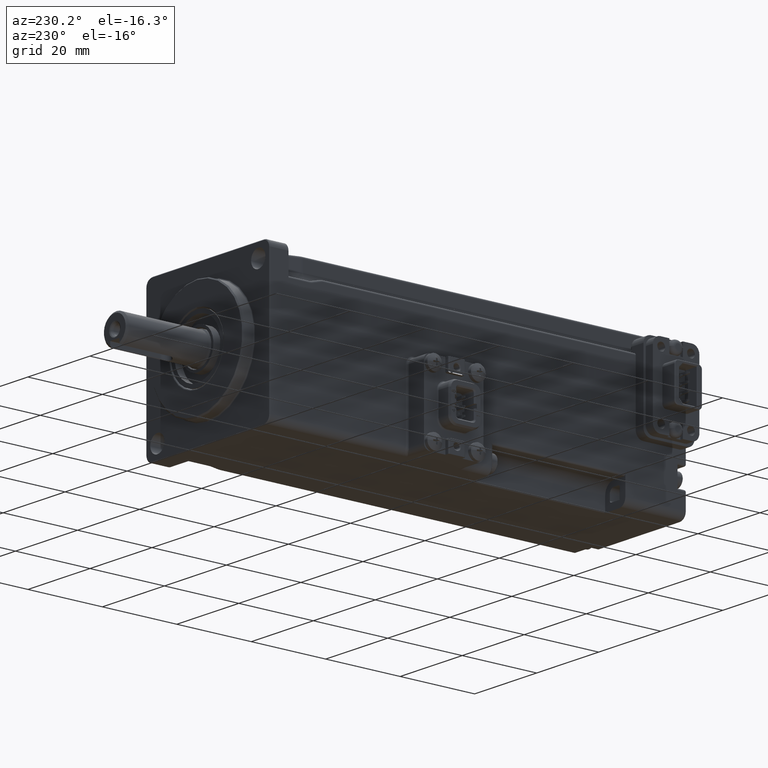
[diagram: clean part render]
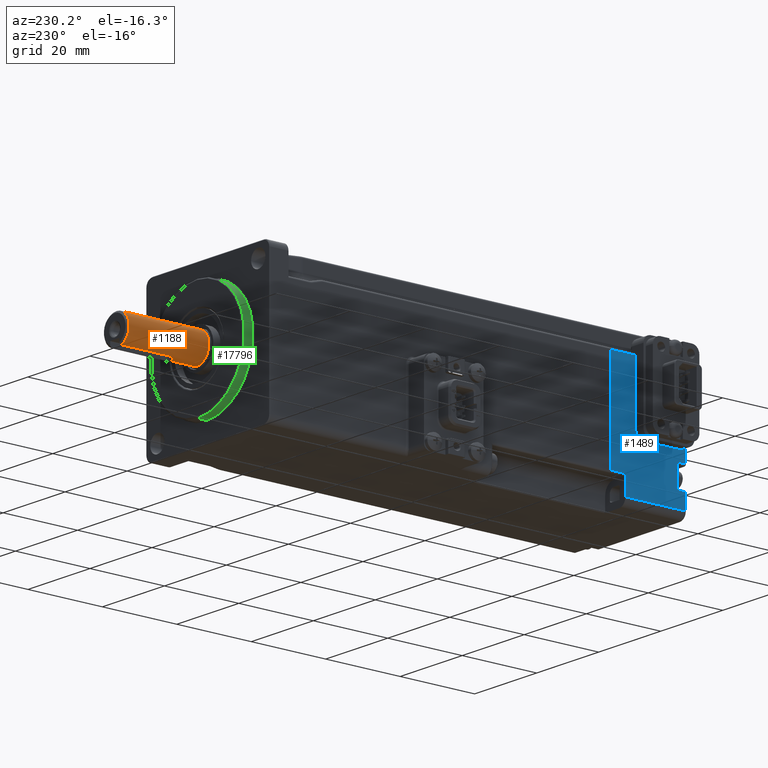
[diagram: same view with three faces highlighted in distinct colors, each labeled with its STEP entity id]
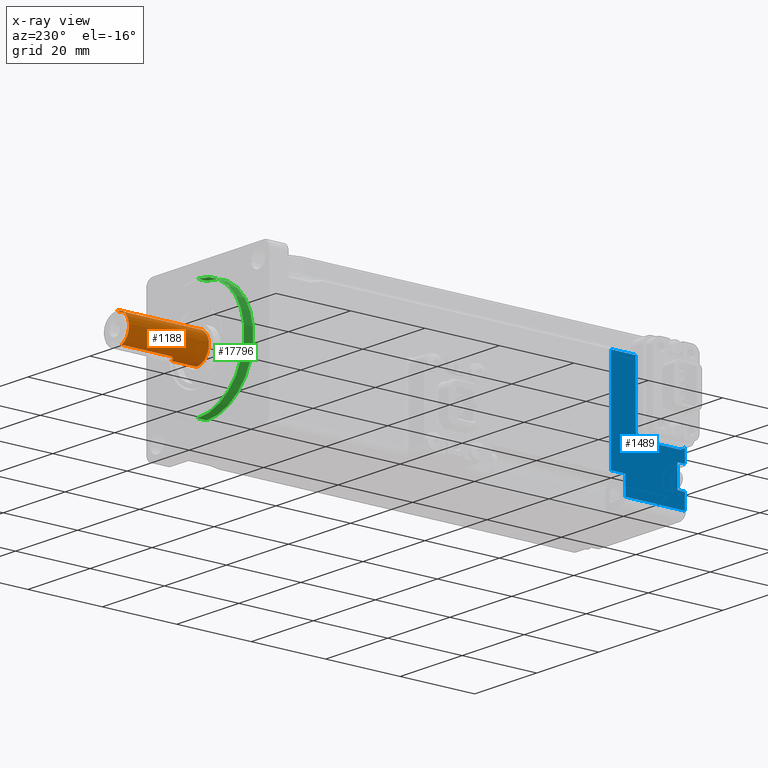
[diagram: x-ray of the same camera — body ghosted, the three highlighted faces saturated]
A machine part, auxiliary view with three faces highlighted in distinct colors.
The next image is the same camera in x-ray (body ghosted, the three faces saturated) — at least one of them is partly hidden behind the body in this view.
Their STEP definitions:

[orange] entity #1188 — the highlighted cylindrical surface (edge-blend (fillet) strip) has radius 4 mm, axis along (0, 1, -0).
#440 = DIRECTION ( 'NONE',  ( 4.613964343715449020E-16, 1.000000000000000000, -1.668049390122796326E-15 ) ) ;
#639 = EDGE_CURVE ( 'NONE', #9700, #16134, #3141, .T. ) ;
#959 = DIRECTION ( 'NONE',  ( -4.613964343715449020E-16, -1.000000000000000000, 1.668049390122796326E-15 ) ) ;
#1097 = ORIENTED_EDGE ( 'NONE', *, *, #639, .T. ) ;
#1188 = ADVANCED_FACE ( 'NONE', ( #8920 ), #24474, .T. ) ;
#1297 = CARTESIAN_POINT ( 'NONE',  ( -1.586832844033362555, 66.08782995957716366, -3.671852177346456525 ) ) ;
#2104 = VECTOR ( 'NONE', #440, 1000.000000000000000 ) ;
#2597 = DIRECTION ( 'NONE',  ( 7.660538869913578551E-15, 0.000000000000000000, 1.000000000000000000 ) ) ;
#3141 = B_SPLINE_CURVE_WITH_KNOTS ( 'NONE', 3,
 ( #10251, #20370, #16602, #1297, #16016, #15766, #23408, #17898, #3182, #13752, #18487, #6231, #21416, #8828 ),
 .UNSPECIFIED., .F., .F.,
 ( 4, 2, 2, 2, 2, 2, 4 ),
 ( 0.000000000000000000, 0.06254959109120407368, 0.1250991821824081474, 0.2501983643648162947, 0.3752975465472244143, 0.4378471376384270308, 0.5003967287296295918 ),
 .UNSPECIFIED. ) ;
#3158 = DIRECTION ( 'NONE',  ( -7.660538869913578551E-15, 0.000000000000000000, -1.000000000000000000 ) ) ;
#3182 = CARTESIAN_POINT ( 'NONE',  ( -0.8298643287301773475, 65.12403026724594213, -3.918116802540133392 ) ) ;
#4179 = CARTESIAN_POINT ( 'NONE',  ( 4.261000048802709602E-14, 80.00000000000000000, 3.999999999999956035 ) ) ;
#4997 = AXIS2_PLACEMENT_3D ( 'NONE', #14363, #23774, #14239 ) ;
#5760 = EDGE_CURVE ( 'NONE', #14280, #19869, #12190, .T. ) ;
#6231 = CARTESIAN_POINT ( 'NONE',  ( -0.2160948840704139118, 64.93314338348770320, -3.995573254002966923 ) ) ;
#6359 = DIRECTION ( 'NONE',  ( -4.613964343715449020E-16, -1.000000000000000000, 1.668049390122796326E-15 ) ) ;
#7172 = AXIS2_PLACEMENT_3D ( 'NONE', #9289, #22838, #3158 ) ;
#7923 = ORIENTED_EDGE ( 'NONE', *, *, #5760, .T. ) ;
#8251 = CARTESIAN_POINT ( 'NONE',  ( -1.640167532133030459, 66.49999999999998579, -3.648266775680856888 ) ) ;
#8585 = CARTESIAN_POINT ( 'NONE',  ( 3.743252093120352734E-14, 58.05734907715176973, 3.999999999999991562 ) ) ;
#8622 = ORIENTED_EDGE ( 'NONE', *, *, #18513, .T. ) ;
#8828 = CARTESIAN_POINT ( 'NONE',  ( 1.120374206118987129E-09, 64.92284821147453044, -3.999999999396812278 ) ) ;
#8920 = FACE_OUTER_BOUND ( 'NONE', #21689, .T. ) ;
#9289 = CARTESIAN_POINT ( 'NONE',  ( 1.245770372803171452E-14, 80.00000000000000000, -4.503733353331550218E-14 ) ) ;
#9700 = VERTEX_POINT ( 'NONE', #8251 ) ;
#10123 = LINE ( 'NONE', #10257, #24551 ) ;
#10251 = CARTESIAN_POINT ( 'NONE',  ( -1.640167532133030459, 66.49999999999998579, -3.648266775680856888 ) ) ;
#10257 = CARTESIAN_POINT ( 'NONE',  ( -1.640167532133024464, 80.00000000000000000, -3.648266775680879537 ) ) ;
#11700 = LINE ( 'NONE', #4179, #21087 ) ;
#11827 = AXIS2_PLACEMENT_3D ( 'NONE', #23794, #959, #2597 ) ;
#12190 = CIRCLE ( 'NONE', #4997, 4.000000000000000888 ) ;
#13731 = LINE ( 'NONE', #19028, #2104 ) ;
#13752 = CARTESIAN_POINT ( 'NONE',  ( -0.5324670303645504532, 65.00469672938253041, -3.965672374539582545 ) ) ;
#14062 = CARTESIAN_POINT ( 'NONE',  ( 1.120374206118987129E-09, 64.92284821147453044, -3.999999999396812278 ) ) ;
#14239 = DIRECTION ( 'NONE',  ( 5.884182030513328875E-15, 1.734723475976806700E-15, 1.000000000000000000 ) ) ;
#14280 = VERTEX_POINT ( 'NONE', #19175 ) ;
#14363 = CARTESIAN_POINT ( 'NONE',  ( 2.333442831570047172E-15, 58.05734907715176263, -8.435908043781079547E-15 ) ) ;
#14406 = EDGE_CURVE ( 'NONE', #20187, #9700, #10123, .T. ) ;
#15503 = CARTESIAN_POINT ( 'NONE',  ( 4.286916099050023172E-14, 79.49999999999997158, 3.999999999999954259 ) ) ;
#15766 = CARTESIAN_POINT ( 'NONE',  ( -1.431204434105839862, 65.70286656942806758, -3.736245161417673266 ) ) ;
#16016 = CARTESIAN_POINT ( 'NONE',  ( -1.554414280712038021, 65.98640223463317511, -3.685887241021339022 ) ) ;
#16134 = VERTEX_POINT ( 'NONE', #14062 ) ;
#16558 = ORIENTED_EDGE ( 'NONE', *, *, #18176, .T. ) ;
#16602 = CARTESIAN_POINT ( 'NONE',  ( -1.629264850746786397, 66.29099116134379699, -3.653222267164699222 ) ) ;
#17264 = VERTEX_POINT ( 'NONE', #15503 ) ;
#17898 = CARTESIAN_POINT ( 'NONE',  ( -1.009780202302538177, 65.24062777858266315, -3.873602713253497587 ) ) ;
#17957 = ORIENTED_EDGE ( 'NONE', *, *, #24183, .F. ) ;
#18176 = EDGE_CURVE ( 'NONE', #19869, #17264, #11700, .T. ) ;
#18487 = CARTESIAN_POINT ( 'NONE',  ( -0.4280321792401518555, 64.97396140806205267, -3.978453352819434130 ) ) ;
#18513 = EDGE_CURVE ( 'NONE', #17264, #20187, #22639, .T. ) ;
#18591 = ORIENTED_EDGE ( 'NONE', *, *, #14406, .T. ) ;
#19028 = CARTESIAN_POINT ( 'NONE',  ( -1.818445175162261073E-14, 80.00000000000000000, -4.000000000000046185 ) ) ;
#19175 = CARTESIAN_POINT ( 'NONE',  ( -2.336193130844633087E-14, 58.05734907715175552, -4.000000000000008882 ) ) ;
#19362 = DIRECTION ( 'NONE',  ( 4.613964343715449020E-16, 1.000000000000000000, -1.668049390122796326E-15 ) ) ;
#19853 = CARTESIAN_POINT ( 'NONE',  ( -1.640167532133024464, 79.49999999999997158, -3.648266775680878649 ) ) ;
#19869 = VERTEX_POINT ( 'NONE', #8585 ) ;
#20187 = VERTEX_POINT ( 'NONE', #19853 ) ;
#20370 = CARTESIAN_POINT ( 'NONE',  ( -1.640127999639785061, 66.39368204703552578, -3.648284548479796108 ) ) ;
#21087 = VECTOR ( 'NONE', #19362, 1000.000000000000000 ) ;
#21416 = CARTESIAN_POINT ( 'NONE',  ( -0.1091573929883013494, 64.92284855885439754, -4.000000000030595082 ) ) ;
#21689 = EDGE_LOOP ( 'NONE', ( #7923, #16558, #8622, #18591, #1097, #17957 ) ) ;
#22639 = CIRCLE ( 'NONE', #11827, 4.000000000000000888 ) ;
#22838 = DIRECTION ( 'NONE',  ( 4.613964343715449020E-16, 1.000000000000000000, -1.668049390122796326E-15 ) ) ;
#23408 = CARTESIAN_POINT ( 'NONE',  ( -1.309108928461947485, 65.52831011143597095, -3.782946979605742666 ) ) ;
#23774 = DIRECTION ( 'NONE',  ( 4.613964343715449020E-16, 1.000000000000000000, -1.668049390122796326E-15 ) ) ;
#23794 = CARTESIAN_POINT ( 'NONE',  ( 1.222700551084593014E-14, 79.49999999999997158, -4.420330883825406250E-14 ) ) ;
#24183 = EDGE_CURVE ( 'NONE', #14280, #16134, #13731, .T. ) ;
#24474 = CYLINDRICAL_SURFACE ( 'NONE', #7172, 4.000000000000000888 ) ;
#24551 = VECTOR ( 'NONE', #6359, 1000.000000000000000 ) ;

[blue] entity #1489 — the highlighted planar face has unit normal (-1, 0, 0).
#29 = LINE ( 'NONE', #11820, #4776 ) ;
#900 = EDGE_CURVE ( 'NONE', #17387, #16874, #29, .T. ) ;
#1287 = DIRECTION ( 'NONE',  ( 4.278510914554647799E-16, 1.000000000000000000, -1.941917958871679015E-15 ) ) ;
#1489 = ADVANCED_FACE ( 'NONE', ( #21702 ), #4774, .T. ) ;
#1506 = VERTEX_POINT ( 'NONE', #20195 ) ;
#1513 = EDGE_CURVE ( 'NONE', #1506, #1633, #19694, .T. ) ;
#1633 = VERTEX_POINT ( 'NONE', #20685 ) ;
#2140 = EDGE_CURVE ( 'NONE', #3796, #23187, #23264, .T. ) ;
#2511 = CARTESIAN_POINT ( 'NONE',  ( -20.00000000000002842, -57.00000000000000000, -7.916336843203768403 ) ) ;
#2692 = LINE ( 'NONE', #8458, #15853 ) ;
#2837 = ORIENTED_EDGE ( 'NONE', *, *, #5343, .F. ) ;
#3044 = LINE ( 'NONE', #10694, #12238 ) ;
#3128 = DIRECTION ( 'NONE',  ( 1.137978600240785257E-15, 1.941917958871677437E-15, 1.000000000000000000 ) ) ;
#3140 = ORIENTED_EDGE ( 'NONE', *, *, #8879, .T. ) ;
#3149 = VECTOR ( 'NONE', #11246, 1000.000000000000000 ) ;
#3244 = ORIENTED_EDGE ( 'NONE', *, *, #6333, .T. ) ;
#3298 = ORIENTED_EDGE ( 'NONE', *, *, #900, .F. ) ;
#3371 = VECTOR ( 'NONE', #19546, 1000.000000000000000 ) ;
#3586 = VERTEX_POINT ( 'NONE', #9416 ) ;
#3718 = CARTESIAN_POINT ( 'NONE',  ( -20.00000000000002487, -40.50000000000001421, -13.00345596729044217 ) ) ;
#3796 = VERTEX_POINT ( 'NONE', #4267 ) ;
#3879 = EDGE_CURVE ( 'NONE', #12524, #18996, #6519, .T. ) ;
#4267 = CARTESIAN_POINT ( 'NONE',  ( -19.99999999999999645, -43.29999999999996163, 13.00345596729071040 ) ) ;
#4370 = CARTESIAN_POINT ( 'NONE',  ( -20.00000000000002487, -40.50000000000001421, -13.00345596729044217 ) ) ;
#4701 = ORIENTED_EDGE ( 'NONE', *, *, #18679, .F. ) ;
#4774 = PLANE ( 'NONE',  #5536 ) ;
#4776 = VECTOR ( 'NONE', #21483, 1000.000000000000000 ) ;
#4859 = VECTOR ( 'NONE', #3128, 1000.000000000000000 ) ;
#4893 = CARTESIAN_POINT ( 'NONE',  ( -19.99999999999999645, -37.09999999999996589, 13.50345596729070685 ) ) ;
#5039 = VERTEX_POINT ( 'NONE', #10416 ) ;
#5339 = VERTEX_POINT ( 'NONE', #19298 ) ;
#5343 = EDGE_CURVE ( 'NONE', #3586, #23187, #11887, .T. ) ;
#5379 = CIRCLE ( 'NONE', #16990, 2.000000000000000444 ) ;
#5536 = AXIS2_PLACEMENT_3D ( 'NONE', #4893, #8397, #6645 ) ;
#6333 = EDGE_CURVE ( 'NONE', #18266, #17178, #18212, .T. ) ;
#6519 = LINE ( 'NONE', #22194, #4859 ) ;
#6645 = DIRECTION ( 'NONE',  ( 1.137978600240785257E-15, 1.941917958871677437E-15, 1.000000000000000000 ) ) ;
#6770 = DIRECTION ( 'NONE',  ( -4.278510914554647799E-16, -1.000000000000000000, 1.941917958871679015E-15 ) ) ;
#6881 = EDGE_CURVE ( 'NONE', #5339, #5039, #5379, .T. ) ;
#7723 = CARTESIAN_POINT ( 'NONE',  ( -20.00000000000002487, -54.99999999999999289, -5.099999999999843325 ) ) ;
#7777 = DIRECTION ( 'NONE',  ( 1.734723475976806700E-15, 0.000000000000000000, 1.000000000000000000 ) ) ;
#8397 = DIRECTION ( 'NONE',  ( -1.000000000000000000, 4.278510914554668506E-16, 1.137978600240784468E-15 ) ) ;
#8453 = ORIENTED_EDGE ( 'NONE', *, *, #20333, .T. ) ;
#8458 = CARTESIAN_POINT ( 'NONE',  ( -20.00000000000001776, -43.29999999999999716, -5.099999999999865530 ) ) ;
#8879 = EDGE_CURVE ( 'NONE', #1633, #18266, #16583, .T. ) ;
#8923 = DIRECTION ( 'NONE',  ( -4.278510914554647799E-16, -1.000000000000000000, 1.941917958871679015E-15 ) ) ;
#8933 = CARTESIAN_POINT ( 'NONE',  ( -20.00000000000002132, -56.49999999999999289, -3.099999999999842437 ) ) ;
#9323 = EDGE_LOOP ( 'NONE', ( #19579, #2837, #14473, #3298, #8453, #19260, #17331, #12432, #23240, #3140, #3244, #4701, #14440, #9406 ) ) ;
#9406 = ORIENTED_EDGE ( 'NONE', *, *, #17914, .T. ) ;
#9416 = CARTESIAN_POINT ( 'NONE',  ( -20.00000000000002132, -36.60000000000001563, -13.00345596729045106 ) ) ;
#9695 = CARTESIAN_POINT ( 'NONE',  ( -20.00000000000002132, -56.49999999999999289, -4.422875655532137351 ) ) ;
#9759 = CARTESIAN_POINT ( 'NONE',  ( -20.00000000000002132, -36.60000000000001563, -13.00345596729045106 ) ) ;
#10416 = CARTESIAN_POINT ( 'NONE',  ( -20.00000000000001421, -43.29999999999999005, -3.099999999999867750 ) ) ;
#10642 = VECTOR ( 'NONE', #20904, 1000.000000000000000 ) ;
#10663 = EDGE_CURVE ( 'NONE', #18996, #18535, #14474, .T. ) ;
#10694 = CARTESIAN_POINT ( 'NONE',  ( -20.00000000000002487, -54.50000000000000000, -8.416336843203774620 ) ) ;
#10743 = VECTOR ( 'NONE', #6770, 1000.000000000000000 ) ;
#11223 = CARTESIAN_POINT ( 'NONE',  ( -20.00000000000003197, -40.50000000000002132, -17.99999999999990052 ) ) ;
#11246 = DIRECTION ( 'NONE',  ( 4.278510914554647799E-16, 1.000000000000000000, -1.941917958871679015E-15 ) ) ;
#11429 = DIRECTION ( 'NONE',  ( 1.000000000000000000, -4.278510914554668506E-16, -1.137978600240785257E-15 ) ) ;
#11820 = CARTESIAN_POINT ( 'NONE',  ( -20.00000000000002487, -40.50000000000002132, -13.50345596729044395 ) ) ;
#11887 = LINE ( 'NONE', #9759, #3371 ) ;
#12070 = CARTESIAN_POINT ( 'NONE',  ( -19.99999999999999289, -36.59999999999996589, 13.00345596729070508 ) ) ;
#12238 = VECTOR ( 'NONE', #18341, 1000.000000000000000 ) ;
#12354 = LINE ( 'NONE', #14236, #16625 ) ;
#12432 = ORIENTED_EDGE ( 'NONE', *, *, #18401, .F. ) ;
#12524 = VERTEX_POINT ( 'NONE', #18173 ) ;
#12724 = VECTOR ( 'NONE', #8923, 1000.000000000000000 ) ;
#12813 = LINE ( 'NONE', #22714, #12724 ) ;
#13499 = LINE ( 'NONE', #3718, #10642 ) ;
#14112 = DIRECTION ( 'NONE',  ( 1.734723475976806700E-15, 3.469446951953613400E-15, 1.000000000000000000 ) ) ;
#14162 = CARTESIAN_POINT ( 'NONE',  ( -20.00000000000003553, -56.50000000000001421, -13.91633684320371422 ) ) ;
#14236 = CARTESIAN_POINT ( 'NONE',  ( -20.00000000000001776, -43.29999999999999716, -5.099999999999865530 ) ) ;
#14440 = ORIENTED_EDGE ( 'NONE', *, *, #6881, .T. ) ;
#14473 = ORIENTED_EDGE ( 'NONE', *, *, #17143, .T. ) ;
#14474 = LINE ( 'NONE', #20606, #21185 ) ;
#15373 = CARTESIAN_POINT ( 'NONE',  ( -19.99999999999999645, -37.09999999999996589, 13.00345596729070685 ) ) ;
#15853 = VECTOR ( 'NONE', #23762, 1000.000000000000000 ) ;
#16004 = CARTESIAN_POINT ( 'NONE',  ( -20.00000000000002132, -54.99999999999999289, -3.099999999999845102 ) ) ;
#16583 = LINE ( 'NONE', #8933, #23881 ) ;
#16625 = VECTOR ( 'NONE', #18123, 1000.000000000000000 ) ;
#16874 = VERTEX_POINT ( 'NONE', #4370 ) ;
#16990 = AXIS2_PLACEMENT_3D ( 'NONE', #21455, #11429, #7777 ) ;
#17123 = CARTESIAN_POINT ( 'NONE',  ( -20.00000000000003553, -54.50000000000001421, -13.91633684320371955 ) ) ;
#17143 = EDGE_CURVE ( 'NONE', #3586, #16874, #13499, .T. ) ;
#17178 = VERTEX_POINT ( 'NONE', #7723 ) ;
#17331 = ORIENTED_EDGE ( 'NONE', *, *, #10663, .T. ) ;
#17387 = VERTEX_POINT ( 'NONE', #11223 ) ;
#17914 = EDGE_CURVE ( 'NONE', #5039, #3796, #12354, .T. ) ;
#18123 = DIRECTION ( 'NONE',  ( 1.137978600240785257E-15, 1.941917958871677437E-15, 1.000000000000000000 ) ) ;
#18173 = CARTESIAN_POINT ( 'NONE',  ( -20.00000000000003908, -56.50000000000002132, -17.99999999999986855 ) ) ;
#18212 = CIRCLE ( 'NONE', #19833, 2.000000000000000444 ) ;
#18266 = VERTEX_POINT ( 'NONE', #9695 ) ;
#18341 = DIRECTION ( 'NONE',  ( -1.820448473823082744E-15, -1.941917958871677043E-15, -1.000000000000000000 ) ) ;
#18401 = EDGE_CURVE ( 'NONE', #1506, #18535, #3044, .T. ) ;
#18535 = VERTEX_POINT ( 'NONE', #17123 ) ;
#18679 = EDGE_CURVE ( 'NONE', #5339, #17178, #2692, .T. ) ;
#18996 = VERTEX_POINT ( 'NONE', #14162 ) ;
#19260 = ORIENTED_EDGE ( 'NONE', *, *, #3879, .T. ) ;
#19298 = CARTESIAN_POINT ( 'NONE',  ( -20.00000000000002132, -45.29999999999999716, -5.099999999999862865 ) ) ;
#19546 = DIRECTION ( 'NONE',  ( 1.137978600240785257E-15, 1.941917958871677437E-15, 1.000000000000000000 ) ) ;
#19579 = ORIENTED_EDGE ( 'NONE', *, *, #2140, .T. ) ;
#19694 = LINE ( 'NONE', #2511, #10743 ) ;
#19833 = AXIS2_PLACEMENT_3D ( 'NONE', #16004, #21906, #14112 ) ;
#20195 = CARTESIAN_POINT ( 'NONE',  ( -20.00000000000002487, -54.50000000000000000, -7.916336843203773732 ) ) ;
#20333 = EDGE_CURVE ( 'NONE', #17387, #12524, #12813, .T. ) ;
#20606 = CARTESIAN_POINT ( 'NONE',  ( -20.00000000000002842, -37.10000000000002274, -13.91633684320375508 ) ) ;
#20685 = CARTESIAN_POINT ( 'NONE',  ( -20.00000000000002842, -56.50000000000000000, -7.916336843203768403 ) ) ;
#20904 = DIRECTION ( 'NONE',  ( -4.278510914554647799E-16, -1.000000000000000000, 1.941917958871679015E-15 ) ) ;
#21185 = VECTOR ( 'NONE', #1287, 1000.000000000000000 ) ;
#21455 = CARTESIAN_POINT ( 'NONE',  ( -20.00000000000001776, -45.29999999999999005, -3.099999999999862865 ) ) ;
#21483 = DIRECTION ( 'NONE',  ( 1.137978600240785257E-15, 1.941917958871677437E-15, 1.000000000000000000 ) ) ;
#21702 = FACE_OUTER_BOUND ( 'NONE', #9323, .T. ) ;
#21906 = DIRECTION ( 'NONE',  ( 1.000000000000000000, -4.278510914554668506E-16, -1.137978600240785257E-15 ) ) ;
#22194 = CARTESIAN_POINT ( 'NONE',  ( -20.00000000000003197, -56.50000000000001421, -13.41633684320371422 ) ) ;
#22714 = CARTESIAN_POINT ( 'NONE',  ( -20.00000000000003908, -57.00000000000002132, -17.99999999999986855 ) ) ;
#23187 = VERTEX_POINT ( 'NONE', #12070 ) ;
#23240 = ORIENTED_EDGE ( 'NONE', *, *, #1513, .T. ) ;
#23264 = LINE ( 'NONE', #15373, #3149 ) ;
#23762 = DIRECTION ( 'NONE',  ( -4.278510914554648292E-16, -1.000000000000000000, 1.941917958871679015E-15 ) ) ;
#23881 = VECTOR ( 'NONE', #24243, 1000.000000000000000 ) ;
#24243 = DIRECTION ( 'NONE',  ( 1.137978600240785257E-15, 1.941917958871677437E-15, 1.000000000000000000 ) ) ;

[green] entity #17796 — the highlighted cylindrical surface (partial cylindrical patch) has radius 15 mm, axis along (-0, 1, -0).
#1286 = ORIENTED_EDGE ( 'NONE', *, *, #4419, .T. ) ;
#1323 = AXIS2_PLACEMENT_3D ( 'NONE', #1330, #20771, #3592 ) ;
#1330 = CARTESIAN_POINT ( 'NONE',  ( 0.000000000000000000, 55.30000000000000426, 0.000000000000000000 ) ) ;
#1408 = DIRECTION ( 'NONE',  ( 0.000000000000000000, 0.000000000000000000, 1.000000000000000000 ) ) ;
#2615 = AXIS2_PLACEMENT_3D ( 'NONE', #7541, #3417, #1408 ) ;
#3417 = DIRECTION ( 'NONE',  ( -0.000000000000000000, 1.000000000000000000, -0.000000000000000000 ) ) ;
#3592 = DIRECTION ( 'NONE',  ( 0.000000000000000000, 0.000000000000000000, -1.000000000000000000 ) ) ;
#4084 = CARTESIAN_POINT ( 'NONE',  ( 1.836970198721029589E-15, 57.69999999999997442, 15.00000000000000000 ) ) ;
#4195 = EDGE_CURVE ( 'NONE', #10590, #5675, #8239, .T. ) ;
#4358 = DIRECTION ( 'NONE',  ( 0.000000000000000000, 0.000000000000000000, -1.000000000000000000 ) ) ;
#4419 = EDGE_CURVE ( 'NONE', #6601, #10590, #11345, .T. ) ;
#5675 = VERTEX_POINT ( 'NONE', #4084 ) ;
#5872 = CARTESIAN_POINT ( 'NONE',  ( 0.000000000000000000, 58.00000000000000000, 15.00000000000000000 ) ) ;
#6601 = VERTEX_POINT ( 'NONE', #19127 ) ;
#6899 = ORIENTED_EDGE ( 'NONE', *, *, #15626, .F. ) ;
#7541 = CARTESIAN_POINT ( 'NONE',  ( 0.000000000000000000, 58.00000000000000000, 0.000000000000000000 ) ) ;
#8239 = LINE ( 'NONE', #5872, #17678 ) ;
#9842 = LINE ( 'NONE', #19507, #23814 ) ;
#9891 = EDGE_LOOP ( 'NONE', ( #6899, #1286, #12359, #24772 ) ) ;
#10590 = VERTEX_POINT ( 'NONE', #23752 ) ;
#11345 = CIRCLE ( 'NONE', #1323, 15.00000000000000000 ) ;
#12359 = ORIENTED_EDGE ( 'NONE', *, *, #4195, .T. ) ;
#12766 = EDGE_CURVE ( 'NONE', #5675, #23751, #21622, .T. ) ;
#13277 = CARTESIAN_POINT ( 'NONE',  ( 0.000000000000000000, 57.69999999999997442, -15.00000000000000000 ) ) ;
#13519 = DIRECTION ( 'NONE',  ( -0.000000000000000000, 1.000000000000000000, -0.000000000000000000 ) ) ;
#15626 = EDGE_CURVE ( 'NONE', #6601, #23751, #9842, .T. ) ;
#17397 = DIRECTION ( 'NONE',  ( 0.000000000000000000, -1.000000000000000000, 0.000000000000000000 ) ) ;
#17678 = VECTOR ( 'NONE', #13519, 1000.000000000000000 ) ;
#17796 = ADVANCED_FACE ( 'NONE', ( #24736 ), #22601, .T. ) ;
#19127 = CARTESIAN_POINT ( 'NONE',  ( 1.836970198721029589E-15, 55.30000000000000426, -15.00000000000000000 ) ) ;
#19257 = DIRECTION ( 'NONE',  ( -0.000000000000000000, 1.000000000000000000, -0.000000000000000000 ) ) ;
#19507 = CARTESIAN_POINT ( 'NONE',  ( 1.836970198721029589E-15, 58.00000000000000000, -15.00000000000000000 ) ) ;
#20771 = DIRECTION ( 'NONE',  ( -0.000000000000000000, 1.000000000000000000, -0.000000000000000000 ) ) ;
#21541 = CARTESIAN_POINT ( 'NONE',  ( 0.000000000000000000, 57.69999999999997442, 0.000000000000000000 ) ) ;
#21622 = CIRCLE ( 'NONE', #24430, 15.00000000000000000 ) ;
#22601 = CYLINDRICAL_SURFACE ( 'NONE', #2615, 15.00000000000000000 ) ;
#23751 = VERTEX_POINT ( 'NONE', #13277 ) ;
#23752 = CARTESIAN_POINT ( 'NONE',  ( 0.000000000000000000, 55.30000000000000426, 15.00000000000000000 ) ) ;
#23814 = VECTOR ( 'NONE', #19257, 1000.000000000000000 ) ;
#24430 = AXIS2_PLACEMENT_3D ( 'NONE', #21541, #17397, #4358 ) ;
#24736 = FACE_OUTER_BOUND ( 'NONE', #9891, .T. ) ;
#24772 = ORIENTED_EDGE ( 'NONE', *, *, #12766, .T. ) ;